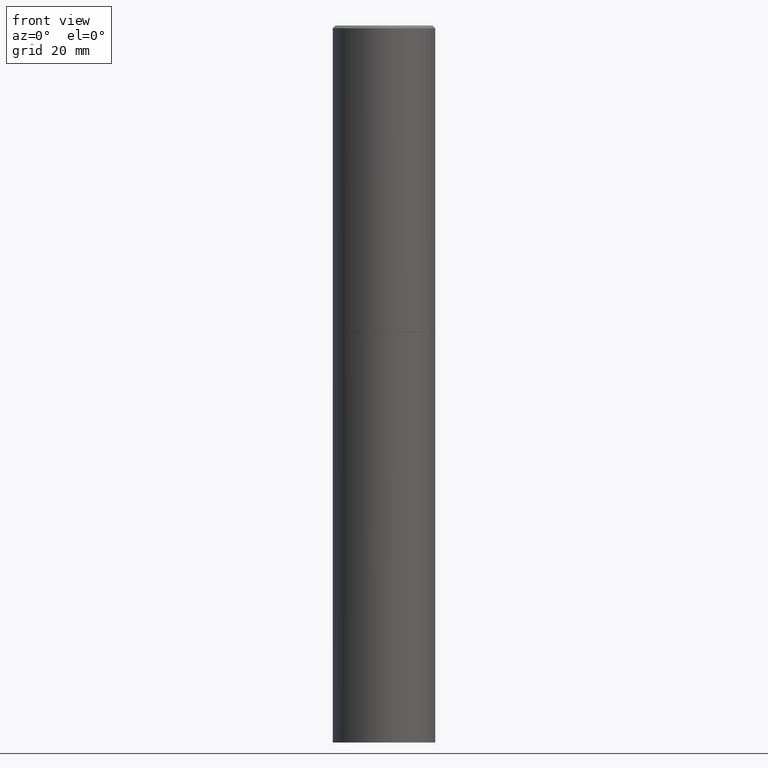
[diagram: clean part render]
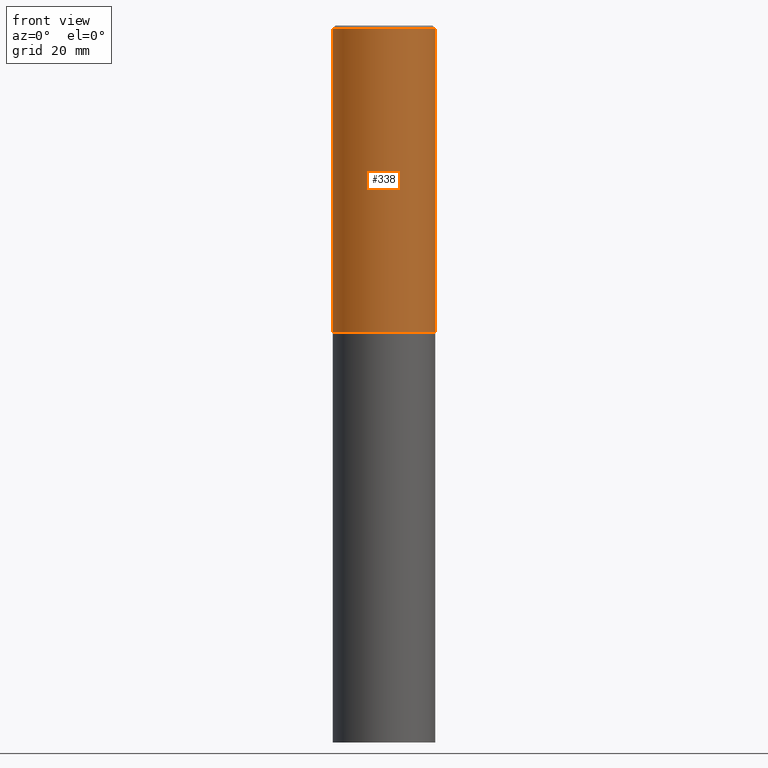
[diagram: same view with one face highlighted and labeled with its STEP entity id]
A machine part, front view. The second image highlights one B-rep face of the part: STEP entity #338.
In plain terms, the highlighted cylindrical surface (partial cylindrical patch) has radius 9.525 mm, axis along (-0, 0, 1).
Its self-contained STEP definition (entity closure, byte-faithful):
#6 = DIRECTION ( 'NONE',  ( -2.445468806185136877E-29, 3.491481338843145188E-15, 1.000000000000000000 ) ) ;
#13 = VERTEX_POINT ( 'NONE', #192 ) ;
#14 = CARTESIAN_POINT ( 'NONE',  ( 5.499859345110371740E-29, -7.852341531058233864E-15, -2.249000000000000110 ) ) ;
#17 = EDGE_CURVE ( 'NONE', #29, #13, #43, .T. ) ;
#29 = VERTEX_POINT ( 'NONE', #169 ) ;
#43 = LINE ( 'NONE', #153, #158 ) ;
#45 = ORIENTED_EDGE ( 'NONE', *, *, #294, .F. ) ;
#47 = DIRECTION ( 'NONE',  ( -2.445468806185136597E-29, 3.491481338843145583E-15, 1.000000000000000000 ) ) ;
#55 = VECTOR ( 'NONE', #6, 39.37007874015748143 ) ;
#64 = AXIS2_PLACEMENT_3D ( 'NONE', #103, #129, #235 ) ;
#77 = FACE_OUTER_BOUND ( 'NONE', #266, .T. ) ;
#80 = EDGE_CURVE ( 'NONE', #360, #303, #345, .T. ) ;
#85 = AXIS2_PLACEMENT_3D ( 'NONE', #14, #184, #156 ) ;
#98 = DIRECTION ( 'NONE',  ( 1.000000000000000000, -6.982962677686266711E-15, 4.876176775795935793E-29 ) ) ;
#103 = CARTESIAN_POINT ( 'NONE',  ( 4.890937612370293302E-31, -6.982962677686318726E-17, -0.02000000000000008021 ) ) ;
#105 = ORIENTED_EDGE ( 'NONE', *, *, #80, .T. ) ;
#129 = DIRECTION ( 'NONE',  ( -2.445468806185136597E-29, 3.491481338843145583E-15, 1.000000000000000000 ) ) ;
#153 = CARTESIAN_POINT ( 'NONE',  ( -0.3749999999999999445, 2.664535259100375303E-15, -1.844600658845589318E-29 ) ) ;
#156 = DIRECTION ( 'NONE',  ( 1.000000000000000000, -6.982962677686265922E-15, 0.000000000000000000 ) ) ;
#158 = VECTOR ( 'NONE', #277, 39.37007874015748143 ) ;
#166 = CARTESIAN_POINT ( 'NONE',  ( 0.3750000000000001110, -1.047095253519058546E-14, -2.249000000000000110 ) ) ;
#169 = CARTESIAN_POINT ( 'NONE',  ( -0.3750000000000001110, -1.296550319817170517E-15, -2.249000000000000110 ) ) ;
#184 = DIRECTION ( 'NONE',  ( -2.445468806185136597E-29, 3.491481338843145583E-15, 1.000000000000000000 ) ) ;
#188 = CYLINDRICAL_SURFACE ( 'NONE', #262, 0.3749999999999999445 ) ;
#192 = CARTESIAN_POINT ( 'NONE',  ( -0.3749999999999998335, 2.548781377355485141E-15, -0.02000000000000008021 ) ) ;
#194 = CIRCLE ( 'NONE', #85, 0.3750000000000001110 ) ;
#235 = DIRECTION ( 'NONE',  ( 1.000000000000000000, -6.982962677686265922E-15, 0.000000000000000000 ) ) ;
#262 = AXIS2_PLACEMENT_3D ( 'NONE', #295, #47, #98 ) ;
#266 = EDGE_LOOP ( 'NONE', ( #293, #362, #105, #45 ) ) ;
#277 = DIRECTION ( 'NONE',  ( -2.445468806185136877E-29, 3.491481338843145188E-15, 1.000000000000000000 ) ) ;
#283 = CIRCLE ( 'NONE', #64, 0.3749999999999998335 ) ;
#286 = EDGE_CURVE ( 'NONE', #29, #360, #194, .T. ) ;
#293 = ORIENTED_EDGE ( 'NONE', *, *, #17, .F. ) ;
#294 = EDGE_CURVE ( 'NONE', #13, #303, #283, .T. ) ;
#295 = CARTESIAN_POINT ( 'NONE',  ( 0.000000000000000000, 0.000000000000000000, 0.000000000000000000 ) ) ;
#303 = VERTEX_POINT ( 'NONE', #350 ) ;
#338 = ADVANCED_FACE ( 'NONE', ( #77 ), #188, .T. ) ;
#343 = CARTESIAN_POINT ( 'NONE',  ( 0.3749999999999999445, -2.618611004132349622E-15, 1.828566290923475642E-29 ) ) ;
#345 = LINE ( 'NONE', #343, #55 ) ;
#350 = CARTESIAN_POINT ( 'NONE',  ( 0.3749999999999998335, -2.642516375941186451E-15, -0.02000000000000008021 ) ) ;
#360 = VERTEX_POINT ( 'NONE', #166 ) ;
#362 = ORIENTED_EDGE ( 'NONE', *, *, #286, .T. ) ;